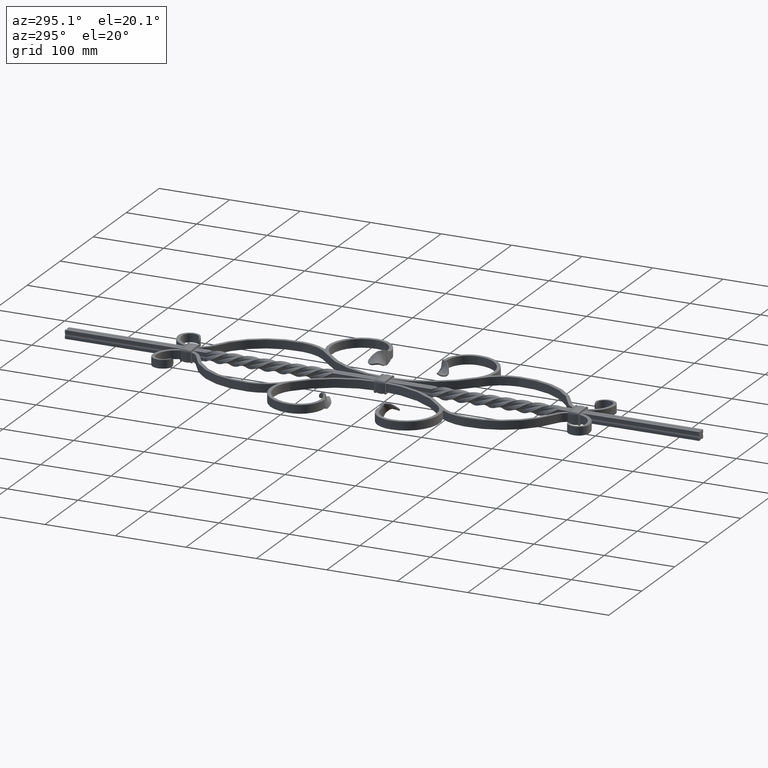
[diagram: clean part render]
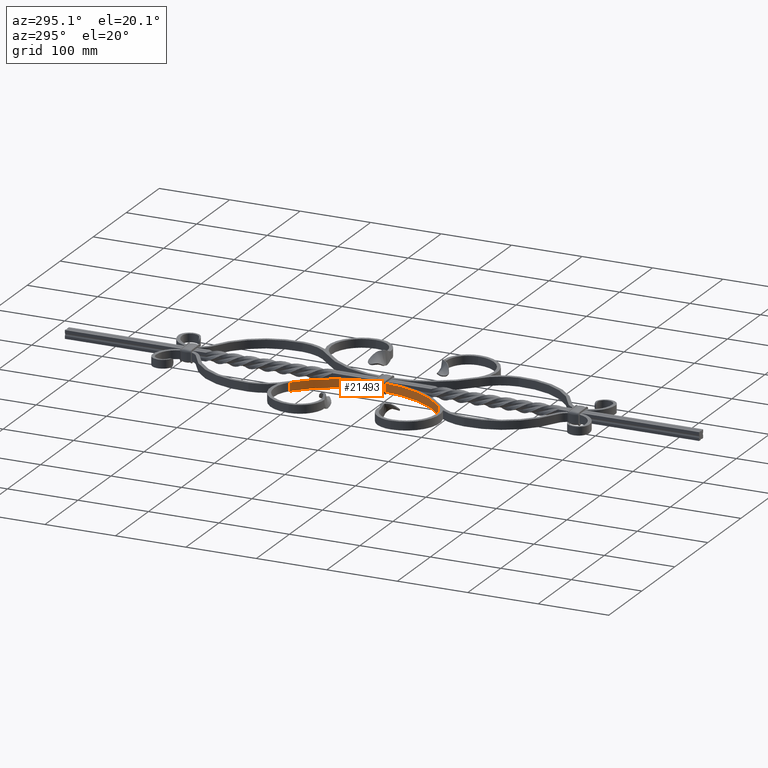
[diagram: same view with one face highlighted and labeled with its STEP entity id]
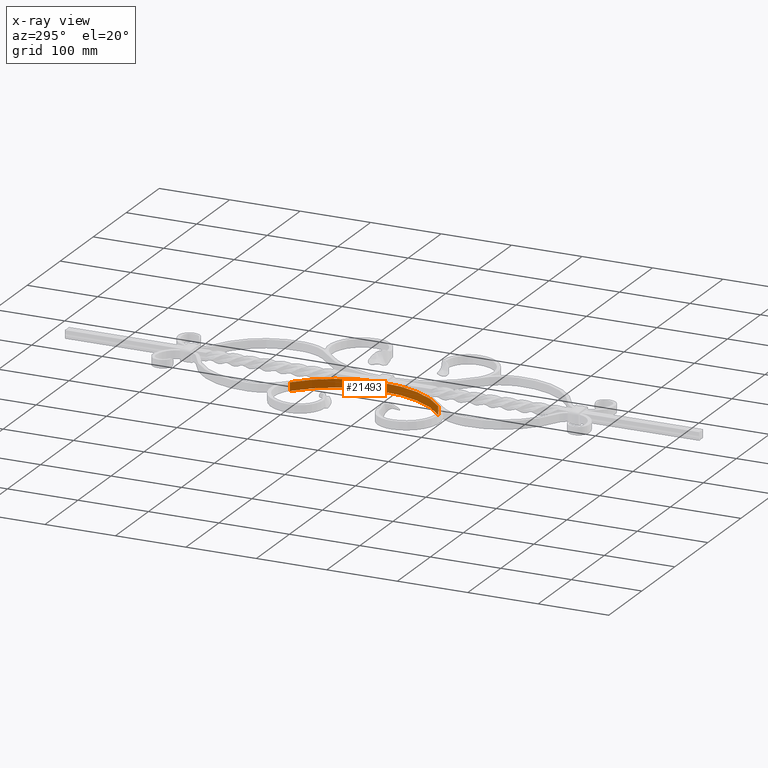
[diagram: x-ray of the same camera — body ghosted, the highlighted face saturated]
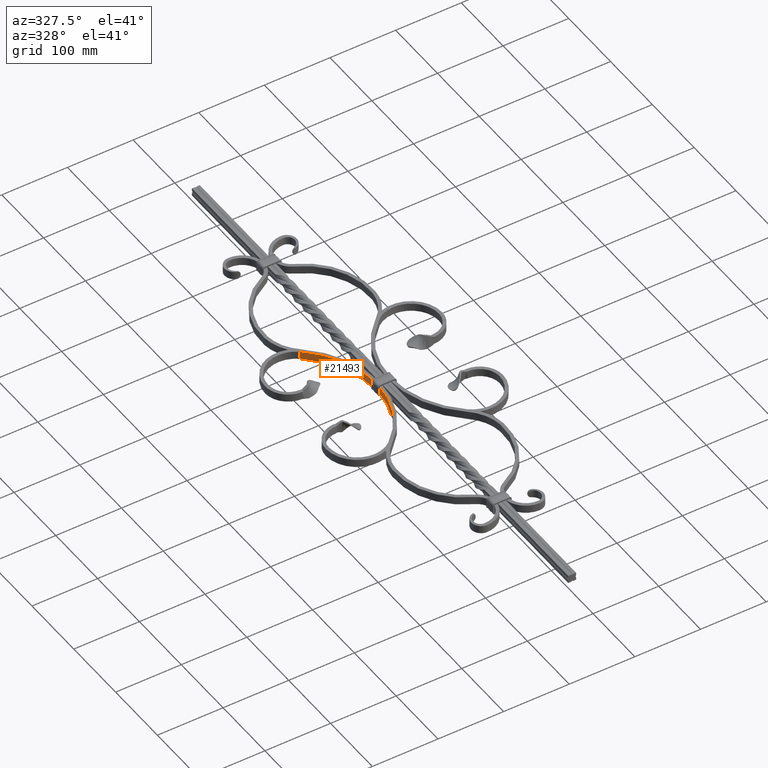
[diagram: same view with one face highlighted and labeled with its STEP entity id]
A machine part, auxiliary view. The second image highlights one B-rep face of the part: STEP entity #21493.
The next image is the same camera in x-ray: the body ghosted, the highlighted face saturated — about 0% of this face is hidden behind the body in this view.
A second angle (auxiliary view) of the same face is appended — the face is thin or edge-on in the first view.
In plain terms, the highlighted cylindrical surface (partial cylindrical patch) has radius 136.798 mm, axis along (0, 0, 1).
Its self-contained STEP definition (entity closure, byte-faithful):
#115 = LINE ( 'NONE', #6378, #24059 ) ;
#763 = DIRECTION ( 'NONE',  ( 0.000000000000000000, 0.000000000000000000, 1.000000000000000000 ) ) ;
#1161 = VECTOR ( 'NONE', #763, 1000.000000000000000 ) ;
#1677 = DIRECTION ( 'NONE',  ( 1.000000000000000000, 0.000000000000000000, 0.000000000000000000 ) ) ;
#1842 = CARTESIAN_POINT ( 'NONE',  ( -60.32379057318865279, -105.1757347459867589, -6.000000000000000000 ) ) ;
#2488 = ORIENTED_EDGE ( 'NONE', *, *, #34331, .F. ) ;
#4166 = DIRECTION ( 'NONE',  ( 0.000000000000000000, 0.000000000000000000, 1.000000000000000000 ) ) ;
#4644 = CARTESIAN_POINT ( 'NONE',  ( -60.32379057318861015, -105.1757347459866594, 6.000000000000000000 ) ) ;
#4926 = CARTESIAN_POINT ( 'NONE',  ( -60.32379057318865279, 105.1757347459867589, 6.000000000000000000 ) ) ;
#5629 = EDGE_CURVE ( 'NONE', #12345, #32417, #115, .T. ) ;
#6188 = ORIENTED_EDGE ( 'NONE', *, *, #31807, .T. ) ;
#6378 = CARTESIAN_POINT ( 'NONE',  ( -60.32379057318865279, -105.1757347459866025, -5.999999999999999112 ) ) ;
#9428 = CARTESIAN_POINT ( 'NONE',  ( -147.7978081062374258, -2.898016718037498487E-14, 6.000000000000000000 ) ) ;
#9530 = DIRECTION ( 'NONE',  ( 0.000000000000000000, 0.000000000000000000, 1.000000000000000000 ) ) ;
#10188 = CARTESIAN_POINT ( 'NONE',  ( -60.32379057318851068, 105.1757347459868157, -5.999999999999999112 ) ) ;
#10259 = ORIENTED_EDGE ( 'NONE', *, *, #5629, .T. ) ;
#11206 = AXIS2_PLACEMENT_3D ( 'NONE', #21186, #34244, #1677 ) ;
#11665 = VERTEX_POINT ( 'NONE', #18590 ) ;
#12345 = VERTEX_POINT ( 'NONE', #1842 ) ;
#13856 = DIRECTION ( 'NONE',  ( 0.6394402218073277355, -0.7688408175526294519, 0.000000000000000000 ) ) ;
#14901 = LINE ( 'NONE', #10188, #1161 ) ;
#16112 = DIRECTION ( 'NONE',  ( 0.6394402218073277355, -0.7688408175526294519, 0.000000000000000000 ) ) ;
#18590 = CARTESIAN_POINT ( 'NONE',  ( -60.32379057318851068, 105.1757347459867731, -5.999999999999999112 ) ) ;
#19217 = AXIS2_PLACEMENT_3D ( 'NONE', #9428, #35299, #16112 ) ;
#21186 = CARTESIAN_POINT ( 'NONE',  ( -147.7978081062374258, -2.898016718037498487E-14, 0.000000000000000000 ) ) ;
#21493 = ADVANCED_FACE ( 'NONE', ( #31425 ), #33793, .F. ) ;
#23179 = EDGE_LOOP ( 'NONE', ( #6188, #2488, #27811, #10259 ) ) ;
#24059 = VECTOR ( 'NONE', #9530, 1000.000000000000000 ) ;
#25683 = CIRCLE ( 'NONE', #36975, 136.7978030625138501 ) ;
#27811 = ORIENTED_EDGE ( 'NONE', *, *, #38248, .F. ) ;
#31425 = FACE_OUTER_BOUND ( 'NONE', #23179, .T. ) ;
#31807 = EDGE_CURVE ( 'NONE', #32417, #33910, #37897, .T. ) ;
#32417 = VERTEX_POINT ( 'NONE', #4644 ) ;
#32889 = CARTESIAN_POINT ( 'NONE',  ( -147.7978081062374258, -2.898016718037498487E-14, -5.999999999999999112 ) ) ;
#33793 = CYLINDRICAL_SURFACE ( 'NONE', #11206, 136.7978030625138501 ) ;
#33910 = VERTEX_POINT ( 'NONE', #4926 ) ;
#34244 = DIRECTION ( 'NONE',  ( 0.000000000000000000, 0.000000000000000000, 1.000000000000000000 ) ) ;
#34331 = EDGE_CURVE ( 'NONE', #11665, #33910, #14901, .T. ) ;
#35299 = DIRECTION ( 'NONE',  ( 0.000000000000000000, 0.000000000000000000, 1.000000000000000000 ) ) ;
#36975 = AXIS2_PLACEMENT_3D ( 'NONE', #32889, #4166, #13856 ) ;
#37897 = CIRCLE ( 'NONE', #19217, 136.7978030625138501 ) ;
#38248 = EDGE_CURVE ( 'NONE', #12345, #11665, #25683, .T. ) ;